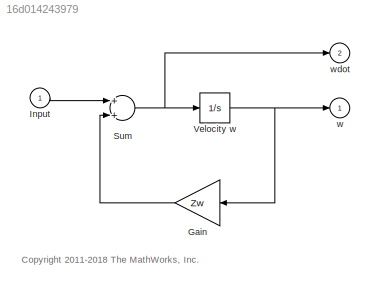
MODEL slx_16d014243979
KIND model
CONFIG AbsTol = auto
CONFIG EnableMultiTasking = on
CONFIG FixedStep = auto
CONFIG MaxStep = 0.1
CONFIG MinStep = auto
CONFIG RelTol = 1e-3
CONFIG SampleTimeConstraint = Unconstrained
CONFIG Solver = VariableStepAuto
CONFIG SolverName = VariableStepAuto
CONFIG StartTime = 0.0
CONFIG StopTime = 10.0
BLOCK [Gain] Gain
  Gain = Zw
BLOCK [Inport] Input
  IconDisplay = Port number
BLOCK [Sum] Sum
  Ports = [2, 1]
BLOCK [Integrator] Velocity w
  Ports = [1, 1]
BLOCK [Outport] w
  IconDisplay = Port number
  VectorParamsAs1DForOutWhenUnconnected = off
BLOCK [Outport] wdot
  IconDisplay = Port number
  Port = 2
  VectorParamsAs1DForOutWhenUnconnected = off
ANNOTATION (root): <copyright redacted>
LINE Gain:1 -> Sum:2
LINE Input:1 -> Sum:1
NET Sum:1 -> Velocity w:1, wdot:1
NET Velocity w:1 -> Gain:1, w:1
note: NET lines group one-source signal fan-out (src -> all destinations, sorted); 1:1 wires keep LINE
